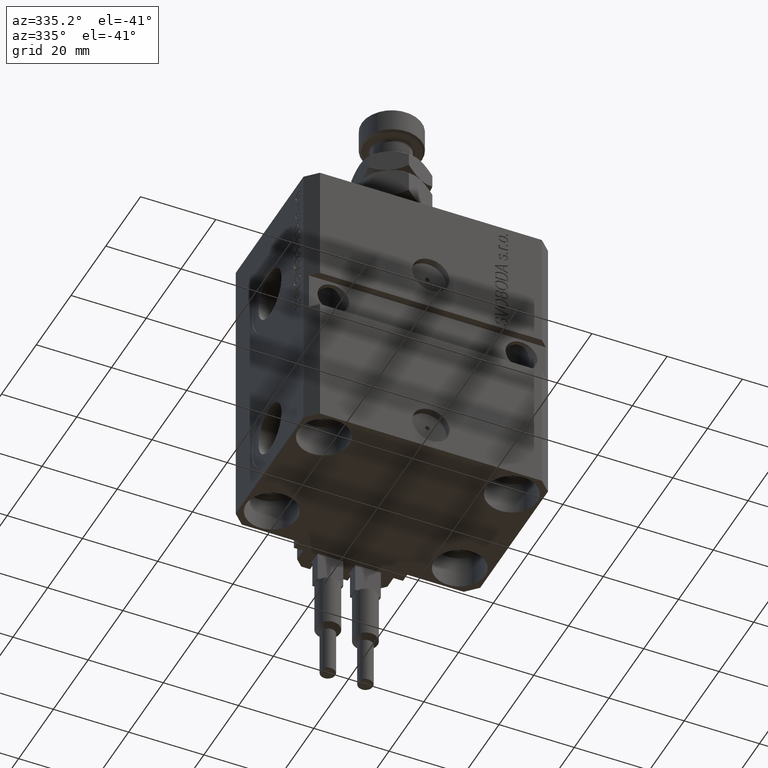
[diagram: clean part render]
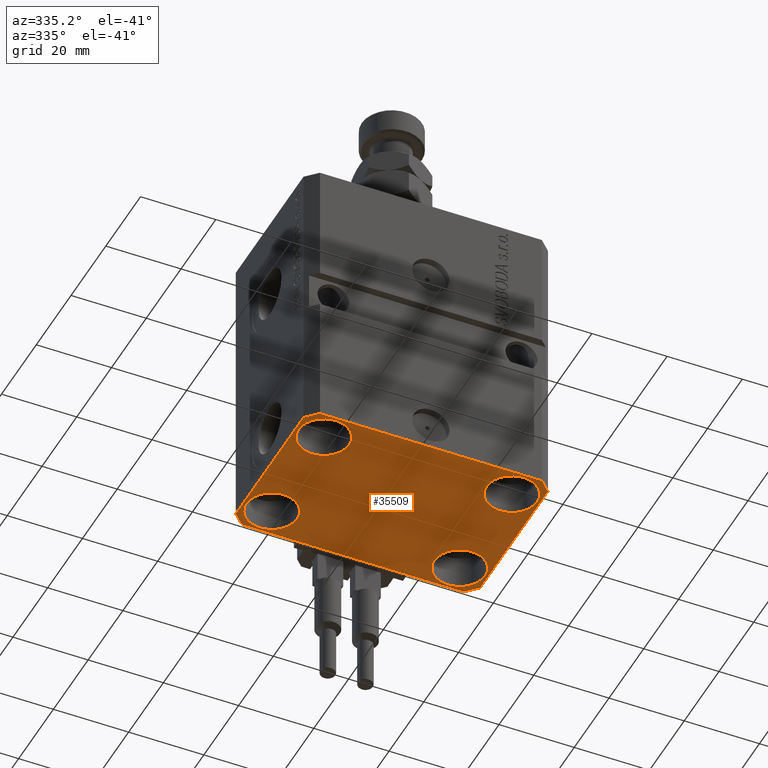
[diagram: same view with one face highlighted and labeled with its STEP entity id]
A machine part, auxiliary view. The second image highlights one B-rep face of the part: STEP entity #35509.
In plain terms, the highlighted planar face has unit normal (0, 0, 1).
Its self-contained STEP definition (entity closure, byte-faithful):
#809 = CARTESIAN_POINT ( 'NONE',  ( -25.00000000000000355, 15.00000000000000000, -77.00000000000000000 ) ) ;
#945 = CARTESIAN_POINT ( 'NONE',  ( 32.49999999999702993, 19.49999999999945999, -77.00000000000000000 ) ) ;
#962 = VERTEX_POINT ( 'NONE', #38760 ) ;
#1193 = DIRECTION ( 'NONE',  ( -0.000000000000000000, -0.000000000000000000, 1.000000000000000000 ) ) ;
#1562 = DIRECTION ( 'NONE',  ( -0.000000000000000000, -0.000000000000000000, 1.000000000000000000 ) ) ;
#1591 = CIRCLE ( 'NONE', #6496, 6.749999999977465137 ) ;
#2348 = CARTESIAN_POINT ( 'NONE',  ( -29.49999999999650413, -22.49999999999949907, -77.00000000000000000 ) ) ;
#2529 = FACE_BOUND ( 'NONE', #9609, .T. ) ;
#3016 = VERTEX_POINT ( 'NONE', #17792 ) ;
#3121 = CARTESIAN_POINT ( 'NONE',  ( 25.00000000000000355, -15.00000000000000000, -77.00000000000000000 ) ) ;
#3283 = CARTESIAN_POINT ( 'NONE',  ( -25.00000000000000355, -15.00000000000000000, -77.00000000000000000 ) ) ;
#3436 = ORIENTED_EDGE ( 'NONE', *, *, #27248, .F. ) ;
#4905 = ORIENTED_EDGE ( 'NONE', *, *, #19995, .T. ) ;
#5013 = DIRECTION ( 'NONE',  ( 1.000000000000000000, 0.000000000000000000, 0.000000000000000000 ) ) ;
#5630 = CARTESIAN_POINT ( 'NONE',  ( 31.74999999995845101, 15.00000000000000888, -77.00000000000000000 ) ) ;
#5763 = VECTOR ( 'NONE', #24932, 1000.000000000000000 ) ;
#6081 = PLANE ( 'NONE',  #47137 ) ;
#6496 = AXIS2_PLACEMENT_3D ( 'NONE', #3121, #25726, #33092 ) ;
#6810 = CARTESIAN_POINT ( 'NONE',  ( -18.24999999995845812, -15.00000000000000000, -77.00000000000000000 ) ) ;
#6841 = ORIENTED_EDGE ( 'NONE', *, *, #33313, .F. ) ;
#6926 = EDGE_CURVE ( 'NONE', #39784, #23214, #16010, .T. ) ;
#7188 = DIRECTION ( 'NONE',  ( 1.334402673828349134E-14, 1.000000000000000000, 0.000000000000000000 ) ) ;
#7315 = DIRECTION ( 'NONE',  ( -0.000000000000000000, -0.000000000000000000, 1.000000000000000000 ) ) ;
#7394 = LINE ( 'NONE', #44133, #26866 ) ;
#7799 = CARTESIAN_POINT ( 'NONE',  ( 32.49999999999651124, -19.49999999999949196, -77.00000000000000000 ) ) ;
#7801 = AXIS2_PLACEMENT_3D ( 'NONE', #30393, #7315, #11116 ) ;
#7955 = ORIENTED_EDGE ( 'NONE', *, *, #6926, .T. ) ;
#8467 = EDGE_CURVE ( 'NONE', #16254, #19357, #37644, .T. ) ;
#9436 = EDGE_CURVE ( 'NONE', #13673, #16254, #50057, .T. ) ;
#9609 = EDGE_LOOP ( 'NONE', ( #10704, #20639 ) ) ;
#9908 = ORIENTED_EDGE ( 'NONE', *, *, #23798, .F. ) ;
#10386 = ORIENTED_EDGE ( 'NONE', *, *, #9436, .F. ) ;
#10704 = ORIENTED_EDGE ( 'NONE', *, *, #14994, .T. ) ;
#11028 = CARTESIAN_POINT ( 'NONE',  ( -18.24999999997747224, 15.00000000000000000, -77.00000000000000000 ) ) ;
#11116 = DIRECTION ( 'NONE',  ( 1.000000000000000000, 0.000000000000000000, 0.000000000000000000 ) ) ;
#11426 = ORIENTED_EDGE ( 'NONE', *, *, #41547, .T. ) ;
#11523 = DIRECTION ( 'NONE',  ( -0.000000000000000000, -0.000000000000000000, 1.000000000000000000 ) ) ;
#11601 = EDGE_CURVE ( 'NONE', #12164, #23492, #1591, .T. ) ;
#12164 = VERTEX_POINT ( 'NONE', #39070 ) ;
#12221 = VERTEX_POINT ( 'NONE', #15735 ) ;
#13040 = ORIENTED_EDGE ( 'NONE', *, *, #35505, .T. ) ;
#13444 = FACE_BOUND ( 'NONE', #36075, .T. ) ;
#13594 = DIRECTION ( 'NONE',  ( -0.7071067811865352493, 0.7071067811865597852, 0.000000000000000000 ) ) ;
#13673 = VERTEX_POINT ( 'NONE', #35375 ) ;
#13759 = DIRECTION ( 'NONE',  ( 1.000000000000000000, 0.000000000000000000, 0.000000000000000000 ) ) ;
#14873 = VERTEX_POINT ( 'NONE', #5630 ) ;
#14940 = CARTESIAN_POINT ( 'NONE',  ( 18.25000000004154543, 15.00000000000000888, -77.00000000000000000 ) ) ;
#14994 = EDGE_CURVE ( 'NONE', #23492, #12164, #45833, .T. ) ;
#15182 = EDGE_CURVE ( 'NONE', #23242, #3016, #26166, .T. ) ;
#15735 = CARTESIAN_POINT ( 'NONE',  ( -32.49999999999650413, -19.49999999999949907, -77.00000000000000000 ) ) ;
#16010 = CIRCLE ( 'NONE', #34619, 6.750000000022533087 ) ;
#16254 = VERTEX_POINT ( 'NONE', #7799 ) ;
#17021 = VECTOR ( 'NONE', #33611, 1000.000000000000000 ) ;
#17792 = CARTESIAN_POINT ( 'NONE',  ( -29.49999999999650413, 22.49999999999949907, -77.00000000000000000 ) ) ;
#18014 = FACE_BOUND ( 'NONE', #27349, .T. ) ;
#18028 = ORIENTED_EDGE ( 'NONE', *, *, #38159, .T. ) ;
#18369 = DIRECTION ( 'NONE',  ( 0.7071067811865483499, 0.7071067811865466846, 0.000000000000000000 ) ) ;
#18769 = DIRECTION ( 'NONE',  ( 1.000000000000000000, 0.000000000000000000, 0.000000000000000000 ) ) ;
#19151 = ORIENTED_EDGE ( 'NONE', *, *, #34318, .F. ) ;
#19160 = VERTEX_POINT ( 'NONE', #6810 ) ;
#19357 = VERTEX_POINT ( 'NONE', #945 ) ;
#19874 = DIRECTION ( 'NONE',  ( 1.000000000000000000, 0.000000000000000000, 0.000000000000000000 ) ) ;
#19995 = EDGE_CURVE ( 'NONE', #36342, #14873, #37025, .T. ) ;
#20639 = ORIENTED_EDGE ( 'NONE', *, *, #11601, .T. ) ;
#20979 = AXIS2_PLACEMENT_3D ( 'NONE', #809, #1562, #27957 ) ;
#21243 = CIRCLE ( 'NONE', #49577, 6.750000000041541881 ) ;
#21570 = CARTESIAN_POINT ( 'NONE',  ( 0.000000000000000000, 0.000000000000000000, -77.00000000000000000 ) ) ;
#22963 = CIRCLE ( 'NONE', #30232, 6.750000000041541881 ) ;
#23214 = VERTEX_POINT ( 'NONE', #39490 ) ;
#23242 = VERTEX_POINT ( 'NONE', #25040 ) ;
#23252 = CARTESIAN_POINT ( 'NONE',  ( -32.49999999999650413, -19.49999999999949907, -77.00000000000000000 ) ) ;
#23492 = VERTEX_POINT ( 'NONE', #29718 ) ;
#23798 = EDGE_CURVE ( 'NONE', #19357, #23242, #24516, .T. ) ;
#24516 = LINE ( 'NONE', #40479, #28250 ) ;
#24629 = DIRECTION ( 'NONE',  ( -0.7071067811865474617, -0.7071067811865474617, 0.000000000000000000 ) ) ;
#24932 = DIRECTION ( 'NONE',  ( 0.000000000000000000, -1.000000000000000000, 0.000000000000000000 ) ) ;
#25040 = CARTESIAN_POINT ( 'NONE',  ( 29.49999999999707967, 22.49999999999951328, -77.00000000000000000 ) ) ;
#25117 = EDGE_CURVE ( 'NONE', #23214, #39784, #30709, .T. ) ;
#25384 = DIRECTION ( 'NONE',  ( 1.000000000000000000, 0.000000000000000000, 0.000000000000000000 ) ) ;
#25726 = DIRECTION ( 'NONE',  ( -0.000000000000000000, -0.000000000000000000, 1.000000000000000000 ) ) ;
#26166 = LINE ( 'NONE', #38747, #26433 ) ;
#26433 = VECTOR ( 'NONE', #29978, 1000.000000000000000 ) ;
#26866 = VECTOR ( 'NONE', #24629, 1000.000000000000114 ) ;
#27248 = EDGE_CURVE ( 'NONE', #49138, #13673, #45278, .T. ) ;
#27349 = EDGE_LOOP ( 'NONE', ( #4905, #11426 ) ) ;
#27957 = DIRECTION ( 'NONE',  ( 1.000000000000000000, 0.000000000000000000, 0.000000000000000000 ) ) ;
#28250 = VECTOR ( 'NONE', #13594, 1000.000000000000000 ) ;
#28917 = FACE_OUTER_BOUND ( 'NONE', #30290, .T. ) ;
#29718 = CARTESIAN_POINT ( 'NONE',  ( 18.25000000002253842, -15.00000000000000000, -77.00000000000000000 ) ) ;
#29978 = DIRECTION ( 'NONE',  ( -1.000000000000000000, -2.352167425053553784E-16, 0.000000000000000000 ) ) ;
#30232 = AXIS2_PLACEMENT_3D ( 'NONE', #3283, #42571, #18769 ) ;
#30290 = EDGE_LOOP ( 'NONE', ( #36276, #9908, #43893, #10386, #3436, #41182, #6841, #19151 ) ) ;
#30393 = CARTESIAN_POINT ( 'NONE',  ( 24.99999999999999645, 15.00000000000000888, -77.00000000000000000 ) ) ;
#30709 = CIRCLE ( 'NONE', #20979, 6.750000000022533087 ) ;
#32281 = LINE ( 'NONE', #48251, #5763 ) ;
#32440 = EDGE_LOOP ( 'NONE', ( #13040, #18028 ) ) ;
#33092 = DIRECTION ( 'NONE',  ( 1.000000000000000000, 0.000000000000000000, 0.000000000000000000 ) ) ;
#33313 = EDGE_CURVE ( 'NONE', #962, #12221, #32281, .T. ) ;
#33611 = DIRECTION ( 'NONE',  ( 1.000000000000000000, 1.176083712526788232E-16, 0.000000000000000000 ) ) ;
#33710 = DIRECTION ( 'NONE',  ( 0.000000000000000000, 0.000000000000000000, 1.000000000000000000 ) ) ;
#33850 = CARTESIAN_POINT ( 'NONE',  ( -31.75000000004154899, -15.00000000000000000, -77.00000000000000000 ) ) ;
#33934 = VECTOR ( 'NONE', #18369, 1000.000000000000000 ) ;
#34016 = VECTOR ( 'NONE', #46322, 1000.000000000000114 ) ;
#34318 = EDGE_CURVE ( 'NONE', #3016, #962, #7394, .T. ) ;
#34619 = AXIS2_PLACEMENT_3D ( 'NONE', #46860, #1193, #5013 ) ;
#34660 = LINE ( 'NONE', #23252, #34016 ) ;
#35375 = CARTESIAN_POINT ( 'NONE',  ( 29.49999999999650413, -22.49999999999949196, -77.00000000000000000 ) ) ;
#35463 = CIRCLE ( 'NONE', #45944, 6.749999999958452790 ) ;
#35505 = EDGE_CURVE ( 'NONE', #49619, #19160, #21243, .T. ) ;
#35509 = ADVANCED_FACE ( 'NONE', ( #40598, #2529, #18014, #13444, #28917 ), #6081, .F. ) ;
#36075 = EDGE_LOOP ( 'NONE', ( #44346, #7955 ) ) ;
#36276 = ORIENTED_EDGE ( 'NONE', *, *, #15182, .F. ) ;
#36342 = VERTEX_POINT ( 'NONE', #14940 ) ;
#37025 = CIRCLE ( 'NONE', #7801, 6.749999999958452790 ) ;
#37092 = CARTESIAN_POINT ( 'NONE',  ( 25.00000000000000355, -15.00000000000000000, -77.00000000000000000 ) ) ;
#37644 = LINE ( 'NONE', #50055, #48464 ) ;
#37738 = AXIS2_PLACEMENT_3D ( 'NONE', #37092, #47997, #13759 ) ;
#38159 = EDGE_CURVE ( 'NONE', #19160, #49619, #22963, .T. ) ;
#38387 = CARTESIAN_POINT ( 'NONE',  ( 29.49999999999650413, -22.49999999999949196, -77.00000000000000000 ) ) ;
#38747 = CARTESIAN_POINT ( 'NONE',  ( 29.49999999999707967, 22.49999999999951328, -77.00000000000000000 ) ) ;
#38760 = CARTESIAN_POINT ( 'NONE',  ( -32.49999999999650413, 19.49999999999949907, -77.00000000000000000 ) ) ;
#39070 = CARTESIAN_POINT ( 'NONE',  ( 31.74999999997746869, -15.00000000000000000, -77.00000000000000000 ) ) ;
#39490 = CARTESIAN_POINT ( 'NONE',  ( -31.75000000002253842, 15.00000000000000000, -77.00000000000000000 ) ) ;
#39784 = VERTEX_POINT ( 'NONE', #11028 ) ;
#40479 = CARTESIAN_POINT ( 'NONE',  ( 32.49999999999702993, 19.49999999999945999, -77.00000000000000000 ) ) ;
#40598 = FACE_BOUND ( 'NONE', #32440, .T. ) ;
#41182 = ORIENTED_EDGE ( 'NONE', *, *, #46289, .F. ) ;
#41490 = CARTESIAN_POINT ( 'NONE',  ( -29.49999999999650413, -22.49999999999949907, -77.00000000000000000 ) ) ;
#41547 = EDGE_CURVE ( 'NONE', #14873, #36342, #35463, .T. ) ;
#42571 = DIRECTION ( 'NONE',  ( -0.000000000000000000, -0.000000000000000000, 1.000000000000000000 ) ) ;
#42953 = CARTESIAN_POINT ( 'NONE',  ( 24.99999999999999645, 15.00000000000000888, -77.00000000000000000 ) ) ;
#43893 = ORIENTED_EDGE ( 'NONE', *, *, #8467, .F. ) ;
#44133 = CARTESIAN_POINT ( 'NONE',  ( -29.49999999999650413, 22.49999999999949907, -77.00000000000000000 ) ) ;
#44346 = ORIENTED_EDGE ( 'NONE', *, *, #25117, .T. ) ;
#44648 = DIRECTION ( 'NONE',  ( -0.000000000000000000, -0.000000000000000000, 1.000000000000000000 ) ) ;
#45278 = LINE ( 'NONE', #41490, #17021 ) ;
#45833 = CIRCLE ( 'NONE', #37738, 6.749999999977465137 ) ;
#45944 = AXIS2_PLACEMENT_3D ( 'NONE', #42953, #11523, #19874 ) ;
#46289 = EDGE_CURVE ( 'NONE', #12221, #49138, #34660, .T. ) ;
#46322 = DIRECTION ( 'NONE',  ( 0.7071067811865474617, -0.7071067811865474617, 0.000000000000000000 ) ) ;
#46860 = CARTESIAN_POINT ( 'NONE',  ( -25.00000000000000355, 15.00000000000000000, -77.00000000000000000 ) ) ;
#47137 = AXIS2_PLACEMENT_3D ( 'NONE', #21570, #33710, #49199 ) ;
#47997 = DIRECTION ( 'NONE',  ( -0.000000000000000000, -0.000000000000000000, 1.000000000000000000 ) ) ;
#48189 = CARTESIAN_POINT ( 'NONE',  ( -25.00000000000000355, -15.00000000000000000, -77.00000000000000000 ) ) ;
#48251 = CARTESIAN_POINT ( 'NONE',  ( -32.49999999999650413, 19.49999999999949907, -77.00000000000000000 ) ) ;
#48464 = VECTOR ( 'NONE', #7188, 1000.000000000000000 ) ;
#49138 = VERTEX_POINT ( 'NONE', #2348 ) ;
#49199 = DIRECTION ( 'NONE',  ( 1.000000000000000000, 0.000000000000000000, -0.000000000000000000 ) ) ;
#49577 = AXIS2_PLACEMENT_3D ( 'NONE', #48189, #44648, #25384 ) ;
#49619 = VERTEX_POINT ( 'NONE', #33850 ) ;
#50055 = CARTESIAN_POINT ( 'NONE',  ( 32.49999999999651124, -19.49999999999949196, -77.00000000000000000 ) ) ;
#50057 = LINE ( 'NONE', #38387, #33934 ) ;